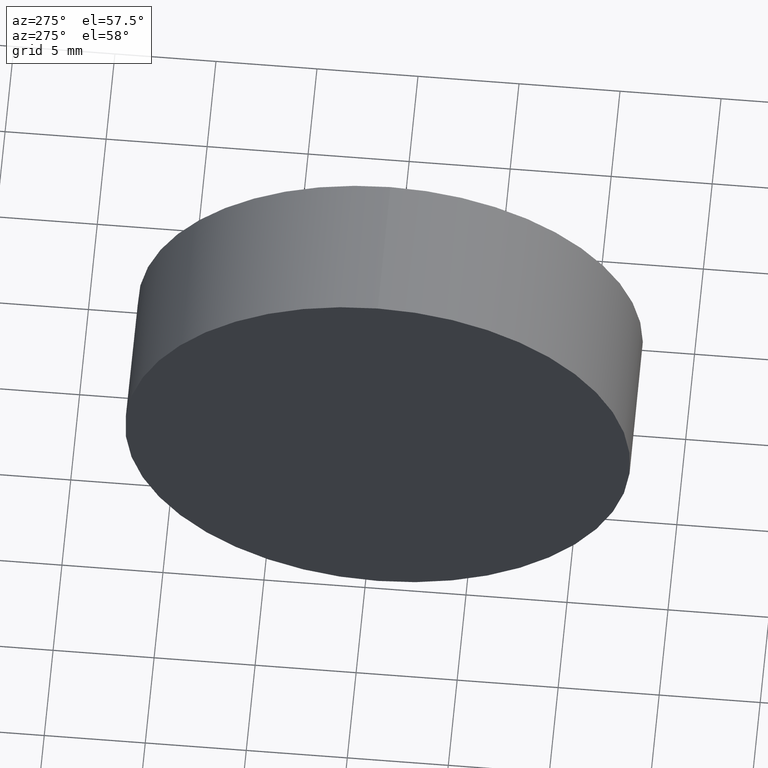
[diagram: clean part render]
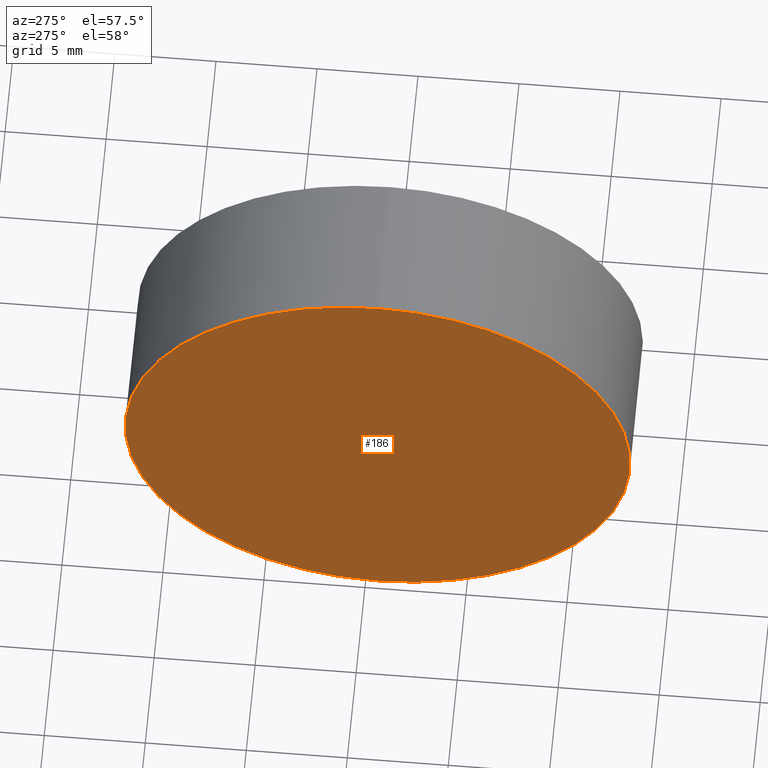
[diagram: same view with one face highlighted and labeled with its STEP entity id]
A machine part, auxiliary view. The second image highlights one B-rep face of the part: STEP entity #186.
In plain terms, the highlighted planar face has unit normal (1, 0, 0).
Its self-contained STEP definition (entity closure, byte-faithful):
#8 = CARTESIAN_POINT ( 'NONE',  ( 115.0926555349195200, 69.37802112337243400, -12.49999999999999600 ) ) ;
#11 = CARTESIAN_POINT ( 'NONE',  ( 115.0926555349195200, 69.37802112337243400, 12.49999999999999600 ) ) ;
#18 = AXIS2_PLACEMENT_3D ( 'NONE', #52, #93, #141 ) ;
#23 = VERTEX_POINT ( 'NONE', #8 ) ;
#39 = DIRECTION ( 'NONE',  ( 1.000000000000000000, 0.0000000000000000000, 0.0000000000000000000 ) ) ;
#45 = CIRCLE ( 'NONE', #75, 12.49999999999999600 ) ;
#52 = CARTESIAN_POINT ( 'NONE',  ( 115.0926555349195200, 69.37802112337243400, 0.0000000000000000000 ) ) ;
#75 = AXIS2_PLACEMENT_3D ( 'NONE', #109, #168, #179 ) ;
#81 = EDGE_CURVE ( 'NONE', #23, #173, #82, .T. ) ;
#82 = CIRCLE ( 'NONE', #18, 12.49999999999999600 ) ;
#86 = AXIS2_PLACEMENT_3D ( 'NONE', #95, #39, #158 ) ;
#89 = EDGE_CURVE ( 'NONE', #173, #23, #45, .T. ) ;
#93 = DIRECTION ( 'NONE',  ( -1.000000000000000000, -0.0000000000000000000, -0.0000000000000000000 ) ) ;
#95 = CARTESIAN_POINT ( 'NONE',  ( 115.0926555349195200, 69.37802112337243400, 0.0000000000000000000 ) ) ;
#109 = CARTESIAN_POINT ( 'NONE',  ( 115.0926555349195200, 69.37802112337243400, 0.0000000000000000000 ) ) ;
#123 = EDGE_LOOP ( 'NONE', ( #177, #183 ) ) ;
#132 = FACE_OUTER_BOUND ( 'NONE', #123, .T. ) ;
#141 = DIRECTION ( 'NONE',  ( 0.0000000000000000000, 0.0000000000000000000, 1.000000000000000000 ) ) ;
#158 = DIRECTION ( 'NONE',  ( 0.0000000000000000000, 0.0000000000000000000, -1.000000000000000000 ) ) ;
#159 = PLANE ( 'NONE',  #86 ) ;
#168 = DIRECTION ( 'NONE',  ( -1.000000000000000000, -0.0000000000000000000, -0.0000000000000000000 ) ) ;
#173 = VERTEX_POINT ( 'NONE', #11 ) ;
#177 = ORIENTED_EDGE ( 'NONE', *, *, #89, .T. ) ;
#179 = DIRECTION ( 'NONE',  ( 0.0000000000000000000, 0.0000000000000000000, 1.000000000000000000 ) ) ;
#183 = ORIENTED_EDGE ( 'NONE', *, *, #81, .T. ) ;
#186 = ADVANCED_FACE ( 'NONE', ( #132 ), #159, .F. ) ;